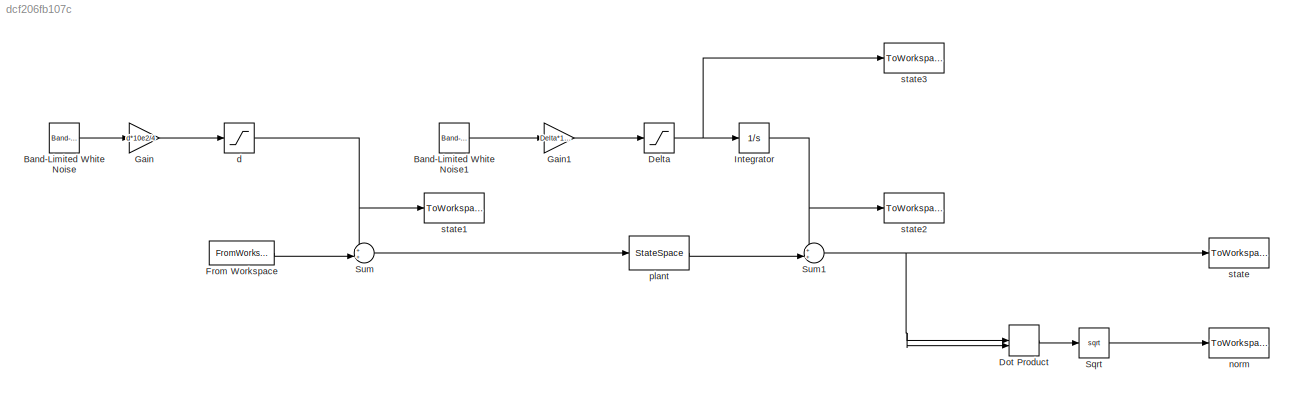
MODEL slx_dcf206fb107c
KIND model
CONFIG AbsTol = auto
CONFIG EnableMultiTasking = off
CONFIG FixedStep = auto
CONFIG MaxStep = auto
CONFIG MinStep = auto
CONFIG RelTol = 1e-3
CONFIG SampleTimeConstraint = Unconstrained
CONFIG Solver = VariableStepAuto
CONFIG SolverName = VariableStepAuto
CONFIG StartTime = 0.0
CONFIG StopTime = stoptime
BLOCK [Reference] Band-Limited White Noise  REF=simulink/Sources/Band-Limited
White Noise
  Ports = [0, 1]
  SourceBlock = simulink/Sources/Band-Limited\nWhite Noise
  SourceType = Band-Limited White Noise.
BLOCK [Reference] Band-Limited White Noise1  REF=simulink/Sources/Band-Limited
White Noise
  Ports = [0, 1]
  SourceBlock = simulink/Sources/Band-Limited\nWhite Noise
  SourceType = Band-Limited White Noise.
BLOCK [Saturate] Delta
  InputPortMap = u0
  LowerLimit = -Delta
  Ports = [1, 1]
  UpperLimit = Delta
BLOCK [DotProduct] Dot Product
  OutDataTypeStr = Inherit: Inherit via internal rule
BLOCK [FromWorkspace] From Workspace
  SampleTime = 0
  VariableName = u_opt
  ZeroCross = on
BLOCK [Gain] Gain
  Gain = d*10e2/4
  OutDataTypeStr = Inherit: Inherit via internal rule
  ParamDataTypeStr = Inherit: Inherit via internal rule
  SaturateOnIntegerOverflow = off
BLOCK [Gain] Gain1
  Gain = Delta*10e2/4
  OutDataTypeStr = Inherit: Inherit via internal rule
  ParamDataTypeStr = Inherit: Inherit via internal rule
  SaturateOnIntegerOverflow = off
BLOCK [Integrator] Integrator
  InitialCondition = Delta0
  Ports = [1, 1]
BLOCK [Sqrt] Sqrt
BLOCK [Sum] Sum
  IconShape = round
  InputSameDT = off
  Inputs = ++|
  OutDataTypeStr = Inherit: Inherit via internal rule
  Ports = [2, 1]
  SaturateOnIntegerOverflow = off
BLOCK [Sum] Sum1
  IconShape = round
  InputSameDT = off
  Inputs = ++|
  OutDataTypeStr = Inherit: Inherit via internal rule
  Ports = [2, 1]
  SaturateOnIntegerOverflow = off
BLOCK [Saturate] d
  InputPortMap = u0
  LowerLimit = -d
  Ports = [1, 1]
  UpperLimit = d
BLOCK [ToWorkspace] norm
  FixptAsFi = on
  MaxDataPoints = inf
  Ports = [1]
  SampleTime = -1
  Save2DSignal = 3-D array (concatenate along third dimension)
  SaveFormat = Timeseries
  VariableName = x_norm
BLOCK [StateSpace] plant
  A = A
  B = B
  C = eye(n)
  D = zeros(n,m)
  Ports = [1, 1]
  X0 = x0
BLOCK [ToWorkspace] state
  FixptAsFi = on
  MaxDataPoints = inf
  Ports = [1]
  SampleTime = -1
  Save2DSignal = 3-D array (concatenate along third dimension)
  SaveFormat = Timeseries
  VariableName = x
BLOCK [ToWorkspace] state1
  FixptAsFi = on
  MaxDataPoints = inf
  Ports = [1]
  SampleTime = -1
  Save2DSignal = 3-D array (concatenate along third dimension)
  SaveFormat = Timeseries
  VariableName = di
BLOCK [ToWorkspace] state2
  FixptAsFi = on
  MaxDataPoints = inf
  Ports = [1]
  SampleTime = -1
  Save2DSignal = 3-D array (concatenate along third dimension)
  SaveFormat = Timeseries
  VariableName = do
BLOCK [ToWorkspace] state3
  FixptAsFi = on
  MaxDataPoints = inf
  Ports = [1]
  SampleTime = -1
  Save2DSignal = 3-D array (concatenate along third dimension)
  SaveFormat = Timeseries
  VariableName = do_gen
LINE Band-Limited White Noise1:1 -> Gain1:1
LINE Band-Limited White Noise:1 -> Gain:1
NET Delta:1 -> Integrator:1, state3:1
LINE Dot Product:1 -> Sqrt:1
LINE From Workspace:1 -> Sum:2
LINE Gain1:1 -> Delta:1
LINE Gain:1 -> d:1
NET Integrator:1 -> Sum1:1, state2:1
LINE Sqrt:1 -> norm:1
NET Sum1:1 -> Dot Product:1, Dot Product:2, state:1
LINE Sum:1 -> plant:1
NET d:1 -> Sum:1, state1:1
LINE plant:1 -> Sum1:2
note: NET lines group one-source signal fan-out (src -> all destinations, sorted); 1:1 wires keep LINE
